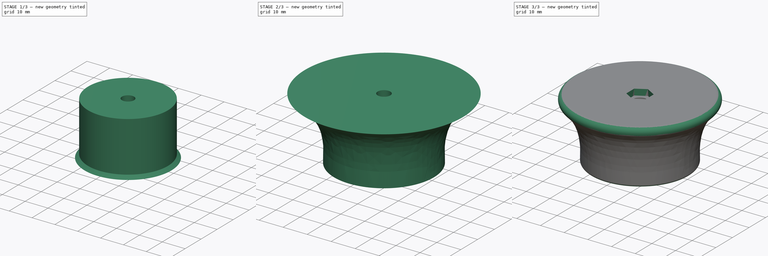
[diagram: build sequence overview — one tinted view per stage of 3, left to right]
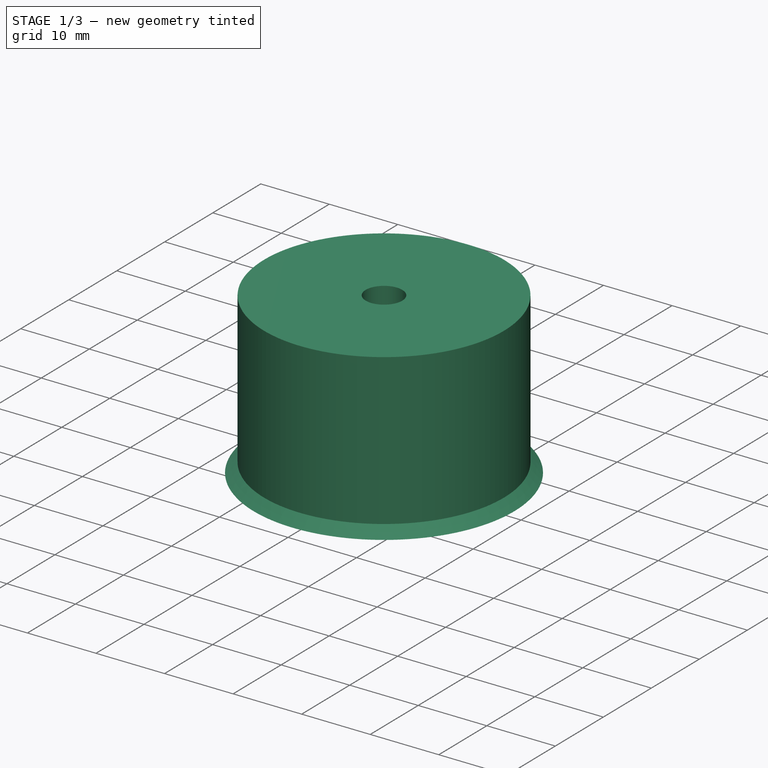
[diagram: stage 1 of 3 — iso view after this stage's code; geometry added in this stage tinted green]
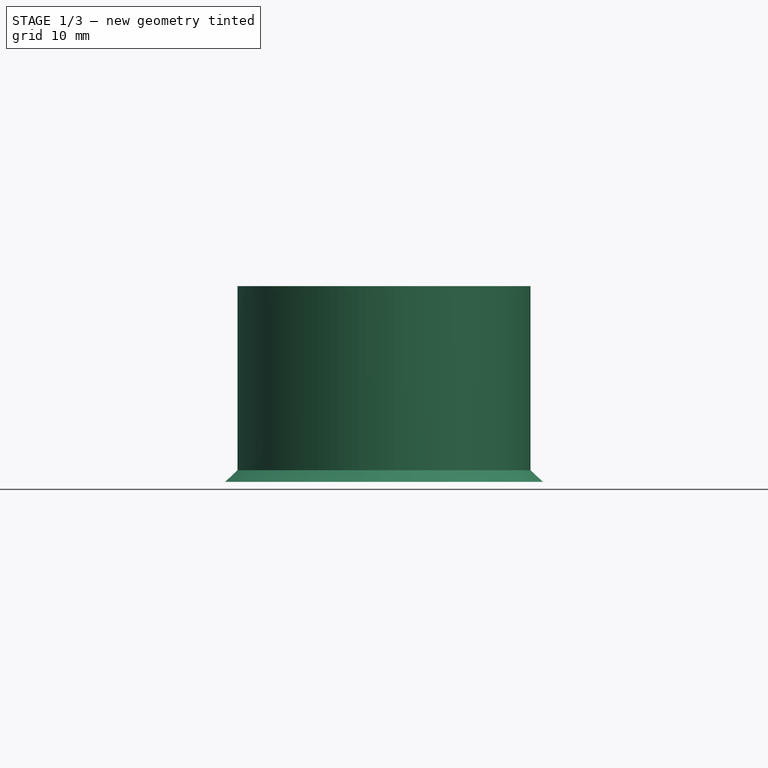
[diagram: stage 1 of 3 — front view after this stage's code; geometry added in this stage tinted green]
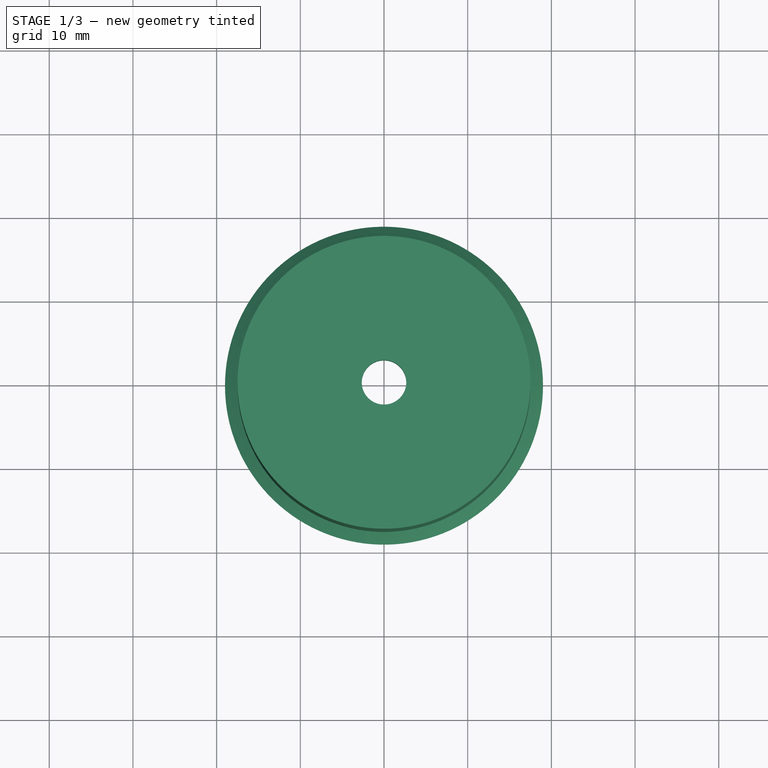
[diagram: stage 1 of 3 — top view after this stage's code; geometry added in this stage tinted green]
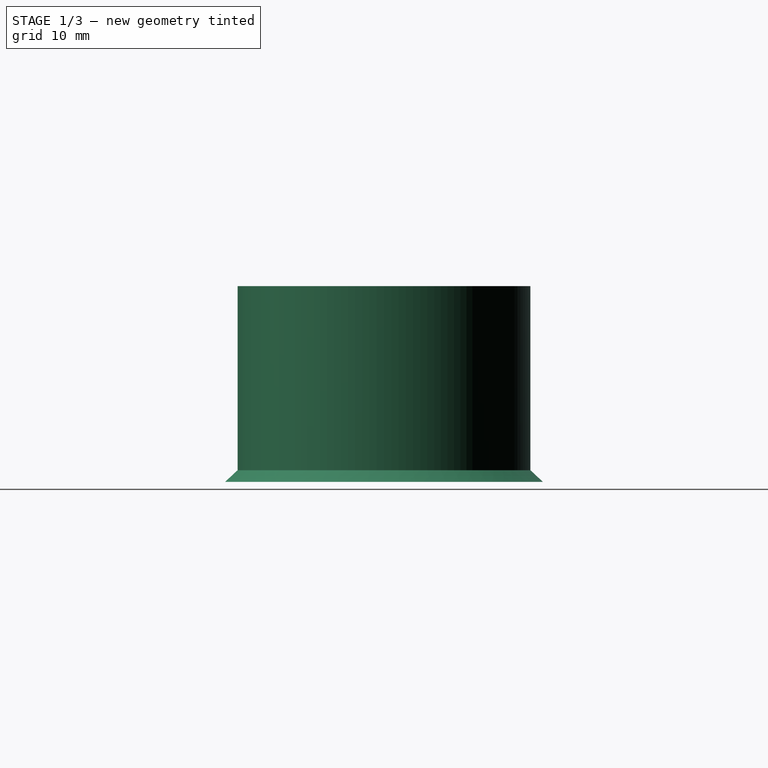
[diagram: stage 1 of 3 — right view after this stage's code; geometry added in this stage tinted green]
FCSTD DOCUMENT  (FreeCAD 0.18.4R)
Label: DishCoverHandle
License: All rights reserved
LicenseURL: http://en.wikipedia.org/wiki/All_rights_reserved
objects: Sketcher::SketchObject×8, PartDesign::AdditiveLoft×2, PartDesign::Pocket×2, PartDesign::Fillet×2, PartDesign::Body×2, PartDesign::Pad×1, Spreadsheet::Sheet×1, PartDesign::Chamfer×1
note: 23 computed .brp shape members not serialized (recipe doc carries the construction recipe); baked Part::Feature solids carry a one-line shape summary decoded from their .brp

FEATURE [PartDesign::Body] Body
  Group = -> [Sketch,Sketch001,Sketch002,AdditiveLoft,Sketch003,Pocket,Fillet,Fillet001]
  Origin = -> Origin
  Tip = -> Fillet001
FEATURE [Sketcher::SketchObject] Sketch004
  MapMode = 5
  Support = -> [XY_Plane001]
  expr: Constraints.Ri = Screws.M5Radius
  sketch-geometry (2):
    g0: Circle CenterX=0 CenterY=0 CenterZ=0 NormalX=0 NormalY=0 NormalZ=1 AngleXU=0 Radius=19
    g1: Circle CenterX=0 CenterY=0 CenterZ=0 NormalX=0 NormalY=0 NormalZ=1 AngleXU=0 Radius=2.66
  constraints (4):
    c: Coincident(g0,g-1)
    c: Radius(g0) = 19
    c: Coincident(g1,g0)
    c: Radius(g1) = 2.66  'Ri'
FEATURE [Sketcher::SketchObject] Sketch005
  AttachmentOffset = pos=(0,0,1.4) rot=(0,0,1;0rad)
  MapMode = 5
  Placement = pos=(0,0,1.4) rot=(0,0,1;0rad)
  Support = -> [XY_Plane001]
  expr: Constraints[3] = Sketch004.Constraints.Ri
  sketch-geometry (2):
    g0: Circle CenterX=0 CenterY=0 CenterZ=0 NormalX=0 NormalY=0 NormalZ=1 AngleXU=0 Radius=17.5
    g1: Circle CenterX=0 CenterY=0 CenterZ=0 NormalX=0 NormalY=0 NormalZ=1 AngleXU=0 Radius=2.66
  constraints (4):
    c: Coincident(g0,g-1)
    c: Radius(g0) = 17.5  'Ro'
    c: Coincident(g1,g0)
    c: Radius(g1) = 2.66
FEATURE [PartDesign::AdditiveLoft] AdditiveLoft001
  Closed = false
  Profile = -> Sketch004
  Ruled = false
  Sections = -> [Sketch005]
FEATURE [Sketcher::SketchObject] Sketch006
  AttachmentOffset = pos=(0,0,1.4) rot=(0,0,1;0rad)
  MapMode = 5
  Placement = pos=(0,0,1.4) rot=(0,0,1;0rad)
  Support = -> [XY_Plane001]
  expr: Constraints[1] = Sketch005.Constraints.Ro
  expr: Constraints[3] = Sketch004.Constraints.Ri
  expr: AttachmentOffset.Base.z = Sketch005.Placement.Base.z
  sketch-geometry (2):
    g0: Circle CenterX=0 CenterY=0 CenterZ=0 NormalX=0 NormalY=0 NormalZ=1 AngleXU=0 Radius=17.5
    g1: Circle CenterX=0 CenterY=0 CenterZ=0 NormalX=0 NormalY=0 NormalZ=1 AngleXU=0 Radius=2.66
  constraints (4):
    c: Coincident(g0,g-1)
    c: Radius(g0) = 17.5
    c: Coincident(g1,g0)
    c: Radius(g1) = 2.66
FEATURE [PartDesign::Pad] Pad
  BaseFeature = -> AdditiveLoft001
  Length = 22
  Length2 = 100
  Profile = -> Sketch006
  Refine = true
  Type = 0
FEATURE [Spreadsheet::Sheet] Spreadsheet001  label="Screws"
  cells = B2=M3Radius; C2(M3Radius)==1.75mm; B3=M3HeadRadius; C3(M3HeadRadius)==3mm; B4=M3HeadHeight; C4(M3HeadHeight)==2.95mm; B5=M3WasherRadius; C5(M3WasherRadius)==3.7mm; B6=M3WasherHeight; C6(M3WasherHeight)==0.5mm; B7=M3NutRadius; C7(M3NutRadius)==3.4mm; B8=M3NutHeight; C8(M3NutHeight)==2.75mm; B9=M3NylocNutHeight; C9(M3NylocNutHeight)==4.1mm; B10=M3NutDuctWidth; C10(M3NutDuctWidth)==5.85mm; B11=M4Radius; C11(M4Radius)==2.2mm; B12=M4HeadRadius; C12(M4HeadRadius)==3.75mm; B13=M4HeadHeight; C13(M4HeadHeight)==4mm; B14=M4WasherRadius; C14(M4WasherRadius)==4.7mm; B15=M4NutRadius; C15(M4NutRadius)==4.25mm; B16=M4NutHeight; C16(M4NutHeight)==3.3mm; B17=M4NutDuctWidth; C17(M4NutDuctWidth)==7.1mm; B18=M5Radius; C18(M5Radius)==2.66mm; B19=M5HeadRadius; C19(M5HeadRadius)==4.5mm; B20=M5HeadHeight; C20(M5HeadHeight)==5mm; B21=M5NutRadius; C21(M5NutRadius)==4.75mm; B22=M5NutHeight; C22(M5NutHeight)==4mm; B24=M6Radius; C24(M6Radius)==3.15mm; B25=M6HeadRadius; C25(M6HeadRadius)==5.5mm; B32=
FEATURE [Sketcher::SketchObject] Sketch007
  MapMode = 5
  Support = -> [XY_Plane001]
  expr: Constraints[18] = Screws.M5NutRadius
  sketch-geometry (7):
    g0: LineSegment StartX=4.75 StartY=-1.643e-13 StartZ=0 EndX=2.375 EndY=4.11362 EndZ=0
    g1: LineSegment StartX=2.375 StartY=4.11362 StartZ=0 EndX=-2.375 EndY=4.11362 EndZ=0
    g2: LineSegment StartX=-2.375 StartY=4.11362 StartZ=0 EndX=-4.75 EndY=4e-14 EndZ=0
    g3: LineSegment StartX=-4.75 StartY=4e-14 StartZ=0 EndX=-2.375 EndY=-4.11362 EndZ=0
    g4: LineSegment StartX=-2.375 StartY=-4.11362 StartZ=0 EndX=2.375 EndY=-4.11362 EndZ=0
    g5: LineSegment StartX=2.375 StartY=-4.11362 StartZ=0 EndX=4.75 EndY=-1.643e-13 EndZ=0
    g6: Circle [constr] CenterX=0 CenterY=0 CenterZ=0 NormalX=0 NormalY=0 NormalZ=1 AngleXU=0 Radius=4.75
  constraints (16):
    c: Coincident(g0,g1)
    c: Coincident(g1,g2)
    c: Coincident(g2,g3)
    c: Coincident(g3,g4)
    c: Coincident(g4,g5)
    c: Coincident(g5,g0)
    c: Equal(g0, g1-g5) x5
    c: PointOnObject(g0,g6)
    c: PointOnObject(g1,g6)
    c: PointOnObject(g2,g6)
    c: PointOnObject(g3,g6)
    c: PointOnObject(g4,g6)
    c: PointOnObject(g5,g6)
    c: Coincident(g6,g-1)
    c: Radius(g6) = 4.75
    c: Horizontal(g1)
FEATURE [PartDesign::Pocket] Pocket001
  BaseFeature = -> Pad
  Length = 19.4
  Length2 = 100
  Profile = -> Sketch007
  Reversed = true
  Type = 0
  expr: Length = Sketch006.Placement.Base.z + Pad.Length - 4mm
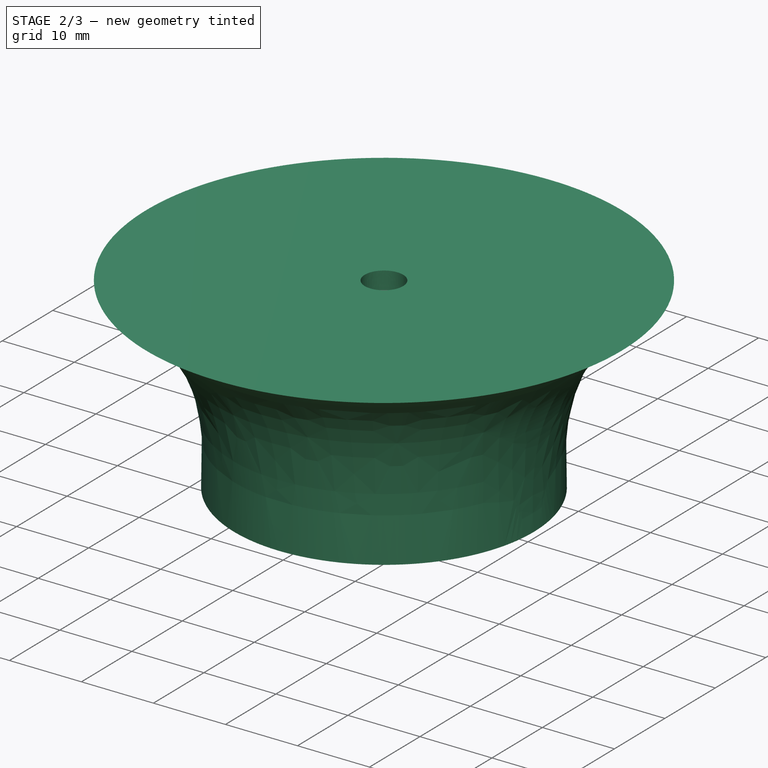
[diagram: stage 2 of 3 — iso view after this stage's code; geometry added in this stage tinted green]
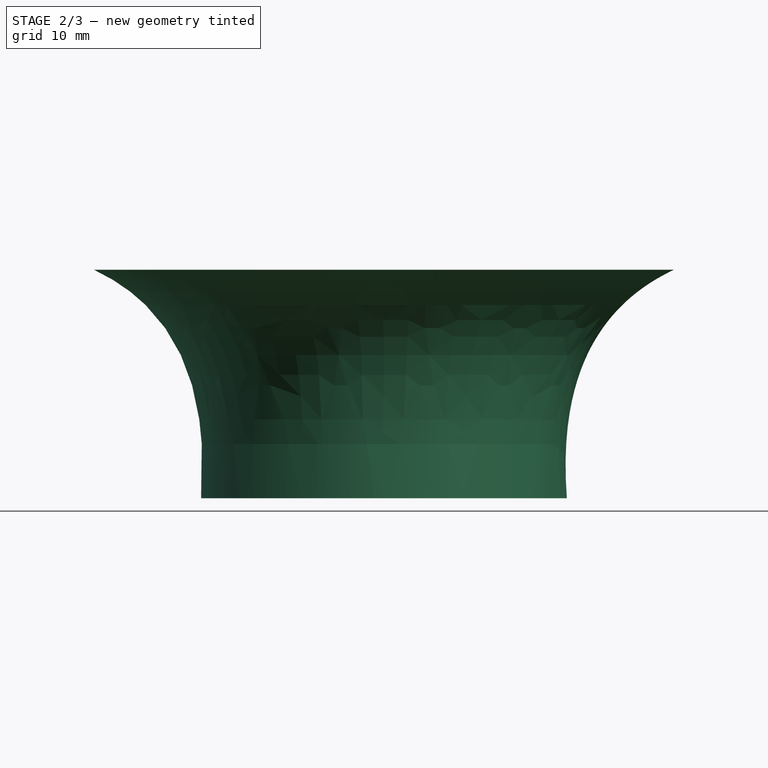
[diagram: stage 2 of 3 — front view after this stage's code; geometry added in this stage tinted green]
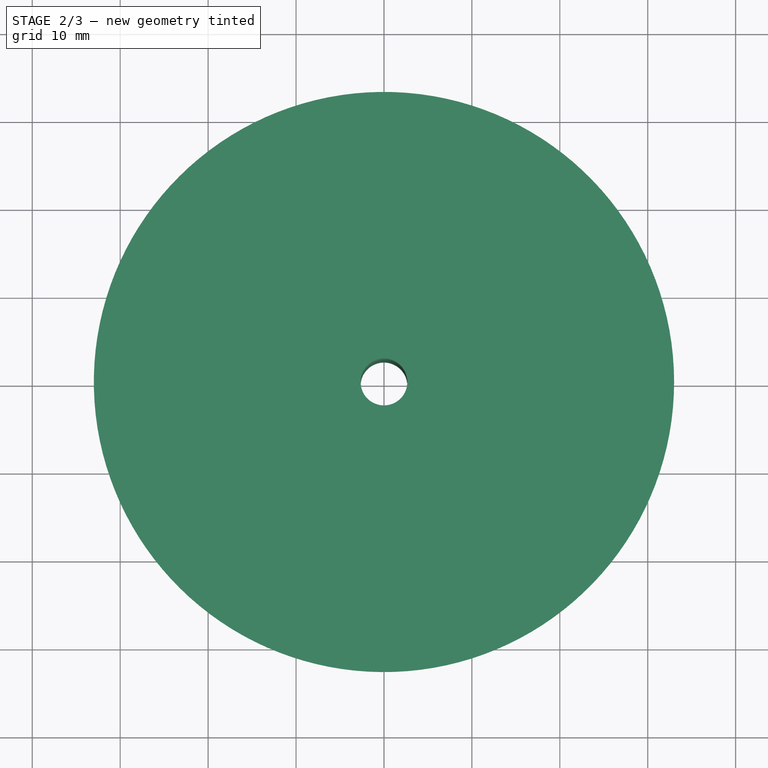
[diagram: stage 2 of 3 — top view after this stage's code; geometry added in this stage tinted green]
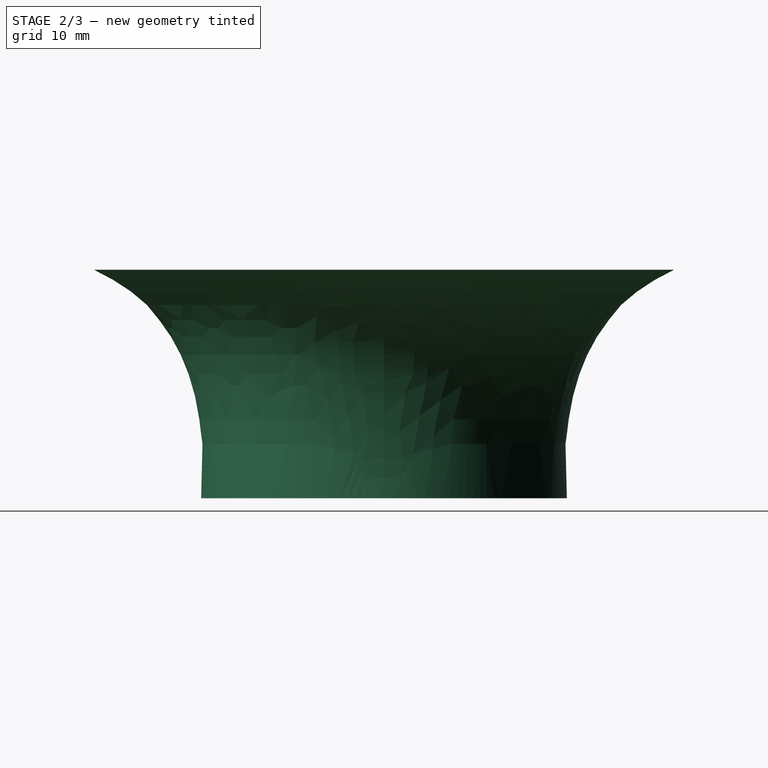
[diagram: stage 2 of 3 — right view after this stage's code; geometry added in this stage tinted green]
FEATURE [Sketcher::SketchObject] Sketch
  MapMode = 5
  Support = -> [XY_Plane]
  expr: Constraints[3] = Screws.M5Radius
  sketch-geometry (2):
    g0: Circle CenterX=0 CenterY=0 CenterZ=0 NormalX=0 NormalY=0 NormalZ=1 AngleXU=0 Radius=20.8
    g1: Circle CenterX=0 CenterY=0 CenterZ=0 NormalX=0 NormalY=0 NormalZ=1 AngleXU=0 Radius=2.66
  constraints (4):
    c: Coincident(g0,g-1)
    c: Radius(g0) = 20.8
    c: Coincident(g1,g0)
    c: Radius(g1) = 2.66
FEATURE [Sketcher::SketchObject] Sketch001
  AttachmentOffset = pos=(0,0,18) rot=(0,0,1;0rad)
  ExternalGeometry = -> [Sketch]
  MapMode = 5
  Placement = pos=(0,0,18) rot=(0,0,1;0rad)
  Support = -> [XY_Plane]
  sketch-geometry (2):
    g0: Circle CenterX=0 CenterY=0 CenterZ=0 NormalX=0 NormalY=0 NormalZ=1 AngleXU=0 Radius=24
    g1: Circle CenterX=0 CenterY=0 CenterZ=0 NormalX=0 NormalY=0 NormalZ=1 AngleXU=0 Radius=2.66
  constraints (4):
    c: Coincident(g0,g-1)
    c: Radius(g0) = 24
    c: Coincident(g1,g0)
    c: Equal(g1,g-3)
FEATURE [Sketcher::SketchObject] Sketch002
  AttachmentOffset = pos=(0,0,26) rot=(0,0,1;0rad)
  ExternalGeometry = -> [Sketch]
  MapMode = 5
  Placement = pos=(0,0,26) rot=(0,0,1;0rad)
  Support = -> [XY_Plane]
  sketch-geometry (2):
    g0: Circle CenterX=0 CenterY=0 CenterZ=0 NormalX=0 NormalY=0 NormalZ=1 AngleXU=0 Radius=33
    g1: Circle CenterX=0 CenterY=0 CenterZ=0 NormalX=0 NormalY=0 NormalZ=1 AngleXU=0 Radius=2.66
  constraints (4):
    c: Coincident(g0,g-1)
    c: Radius(g0) = 33
    c: Coincident(g1,g0)
    c: Equal(g1,g-3)
FEATURE [PartDesign::AdditiveLoft] AdditiveLoft
  Closed = false
  Profile = -> Sketch
  Ruled = false
  Sections = -> [Sketch001,Sketch002]
FEATURE [PartDesign::Chamfer] Chamfer
  Base = -> Pocket001 [Edge23]
  BaseFeature = -> Pocket001
  Size = 9
FEATURE [PartDesign::Body] Body001
  Group = -> [Sketch004,Sketch005,AdditiveLoft001,Sketch006,Pad,Sketch007,Pocket001,Chamfer]
  Origin = -> Origin001
  Tip = -> Chamfer
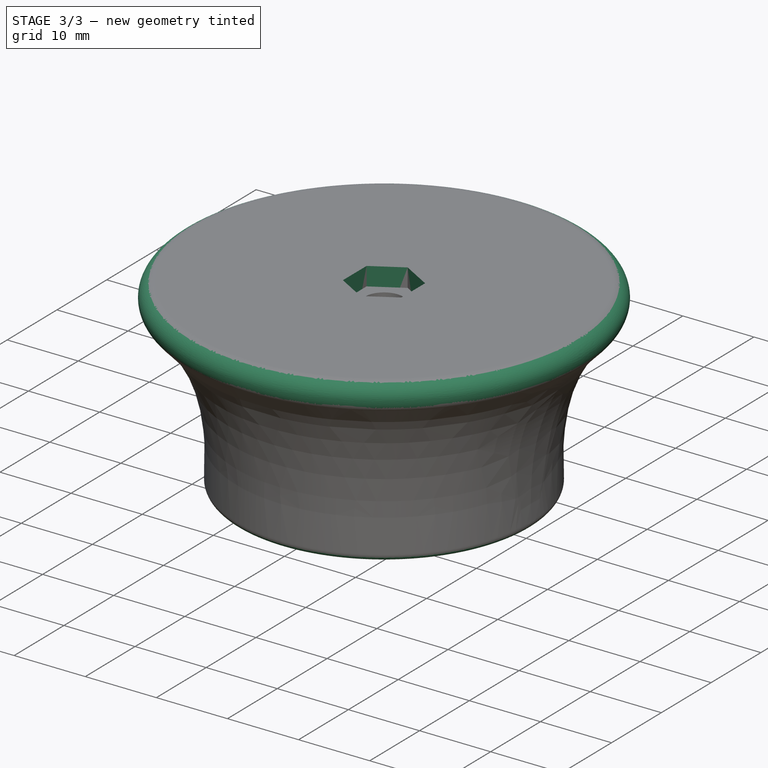
[diagram: stage 3 of 3 — iso view after this stage's code; geometry added in this stage tinted green]
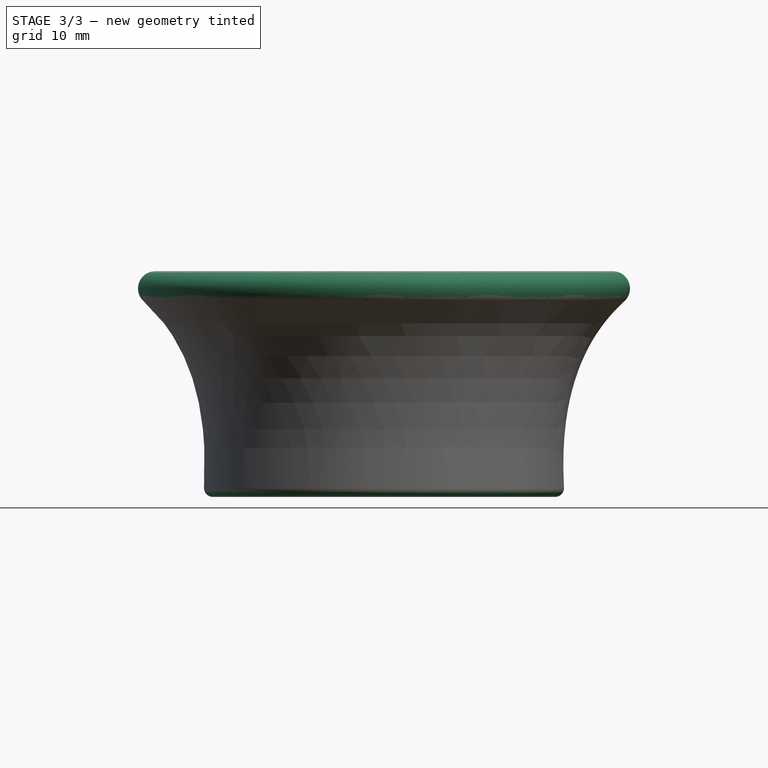
[diagram: stage 3 of 3 — front view after this stage's code; geometry added in this stage tinted green]
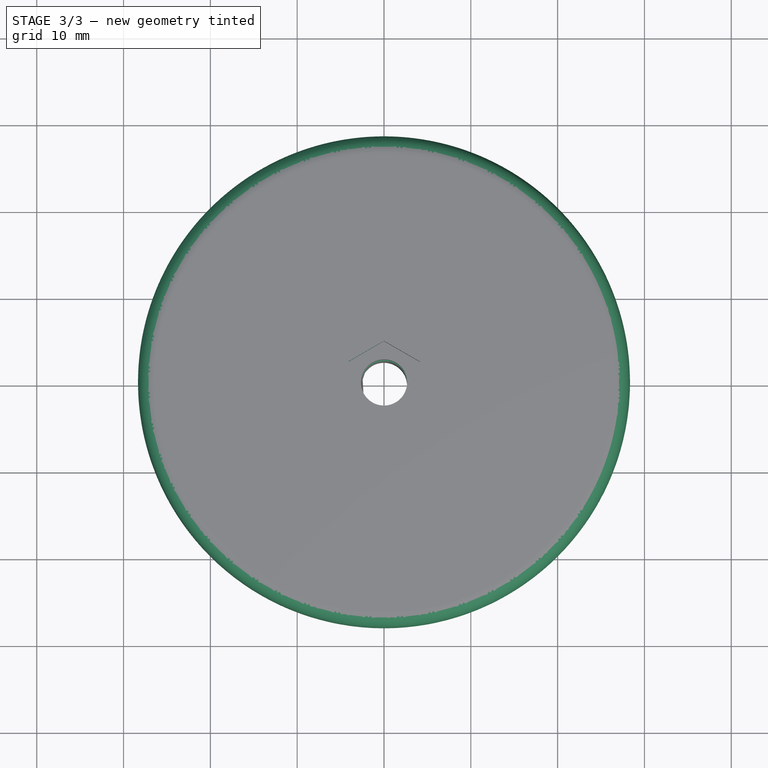
[diagram: stage 3 of 3 — top view after this stage's code; geometry added in this stage tinted green]
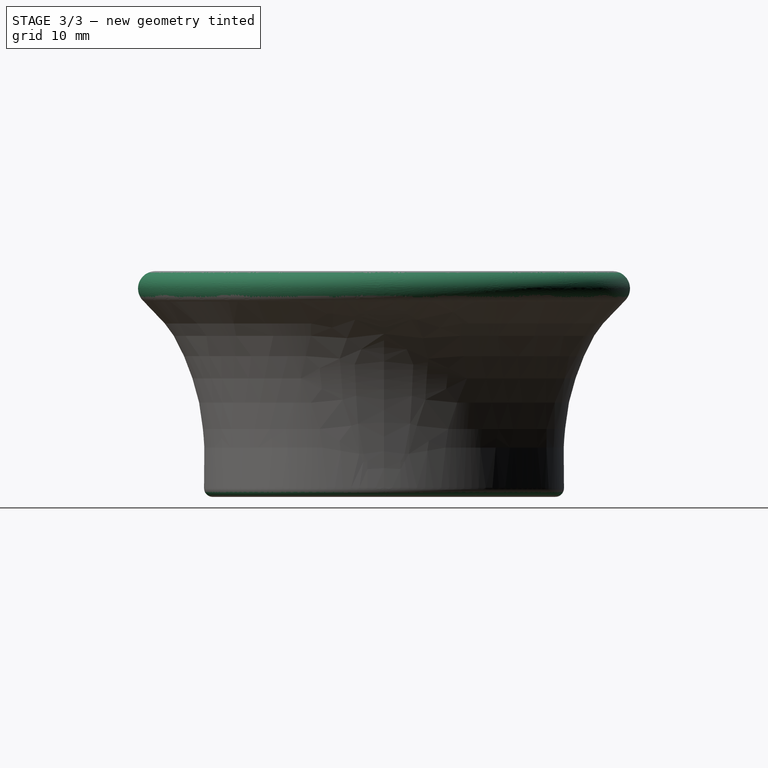
[diagram: stage 3 of 3 — right view after this stage's code; geometry added in this stage tinted green]
FEATURE [Sketcher::SketchObject] Sketch003
  AttachmentOffset = pos=(0,0,12) rot=(0,0,1;0rad)
  MapMode = 5
  Placement = pos=(0,0,12) rot=(0,0,1;0rad)
  Support = -> [XY_Plane]
  expr: Constraints[19] = Screws.M5NutRadius
  sketch-geometry (7):
    g0: LineSegment StartX=4.11362 StartY=-2.375 StartZ=0 EndX=4.11362 EndY=2.375 EndZ=0
    g1: LineSegment StartX=4.11362 StartY=2.375 StartZ=0 EndX=0 EndY=4.75 EndZ=0
    g2: LineSegment StartX=0 StartY=4.75 StartZ=0 EndX=-4.11362 EndY=2.375 EndZ=0
    g3: LineSegment StartX=-4.11362 StartY=2.375 StartZ=0 EndX=-4.11362 EndY=-2.375 EndZ=0
    g4: LineSegment StartX=-4.11362 StartY=-2.375 StartZ=0 EndX=0 EndY=-4.75 EndZ=0
    g5: LineSegment StartX=0 StartY=-4.75 StartZ=0 EndX=4.11362 EndY=-2.375 EndZ=0
    g6: Circle [constr] CenterX=0 CenterY=0 CenterZ=0 NormalX=0 NormalY=0 NormalZ=1 AngleXU=0 Radius=4.75
  constraints (16):
    c: Coincident(g0,g1)
    c: Coincident(g1,g2)
    c: Coincident(g2,g3)
    c: Coincident(g3,g4)
    c: Coincident(g4,g5)
    c: Coincident(g5,g0)
    c: Equal(g0, g1-g5) x5
    c: PointOnObject(g0,g6)
    c: PointOnObject(g1,g6)
    c: PointOnObject(g2,g6)
    c: PointOnObject(g3,g6)
    c: PointOnObject(g4,g6)
    c: PointOnObject(g5,g6)
    c: Coincident(g6,g-1)
    c: Vertical(g0)
    c: Radius(g6) = 4.75
FEATURE [PartDesign::Pocket] Pocket
  BaseFeature = -> AdditiveLoft
  Length = 5
  Length2 = 100
  Profile = -> Sketch003
  Reversed = true
  Type = 1
FEATURE [PartDesign::Fillet] Fillet
  Base = -> Pocket [Edge4]
  BaseFeature = -> Pocket
  Radius = 2
FEATURE [PartDesign::Fillet] Fillet001
  Base = -> Fillet [Edge3]
  BaseFeature = -> Fillet
  Radius = 1
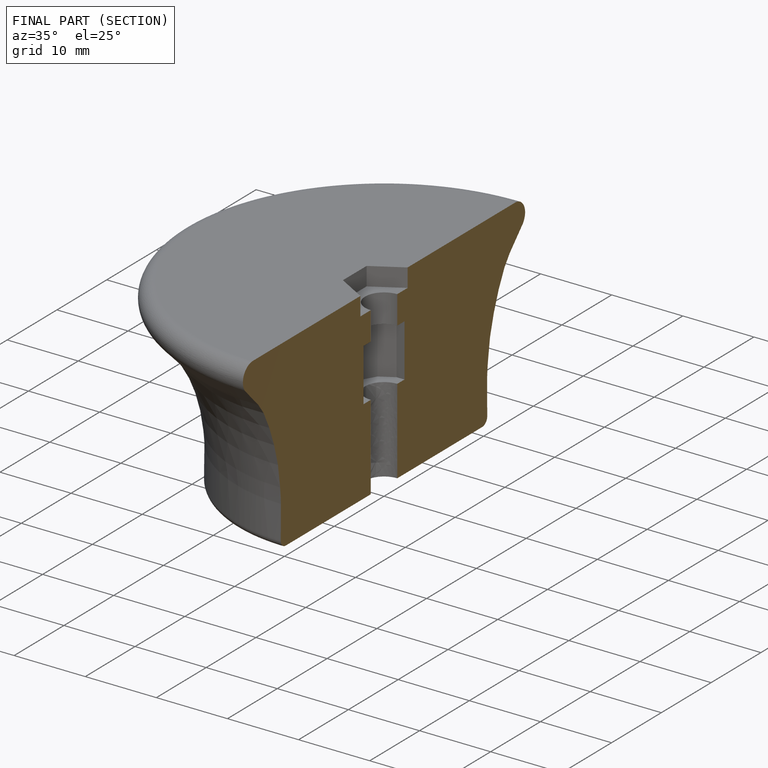
[diagram: finished part — half-section view (interior)]
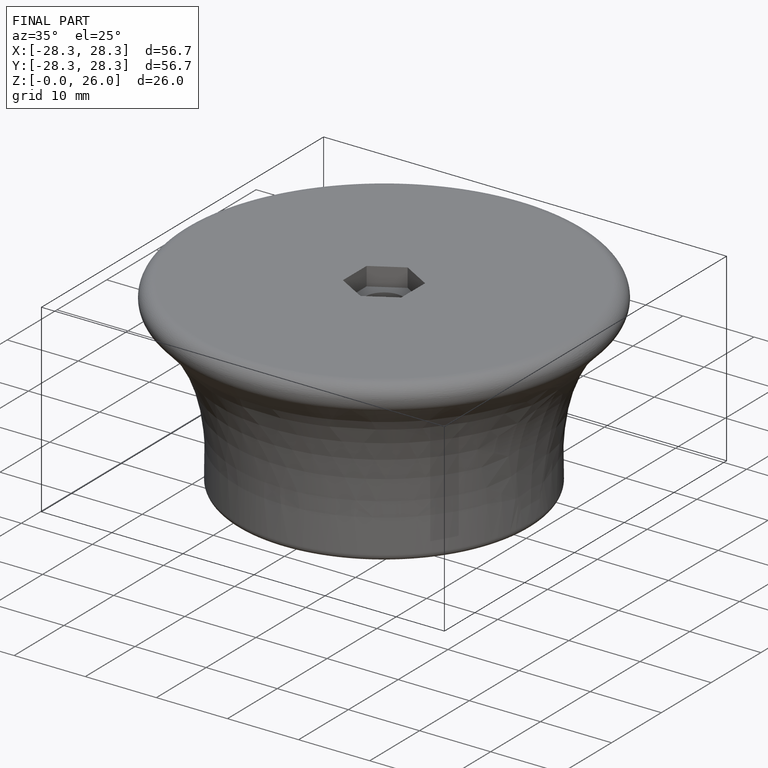
[diagram: finished part — iso view with bounding-box wireframe]
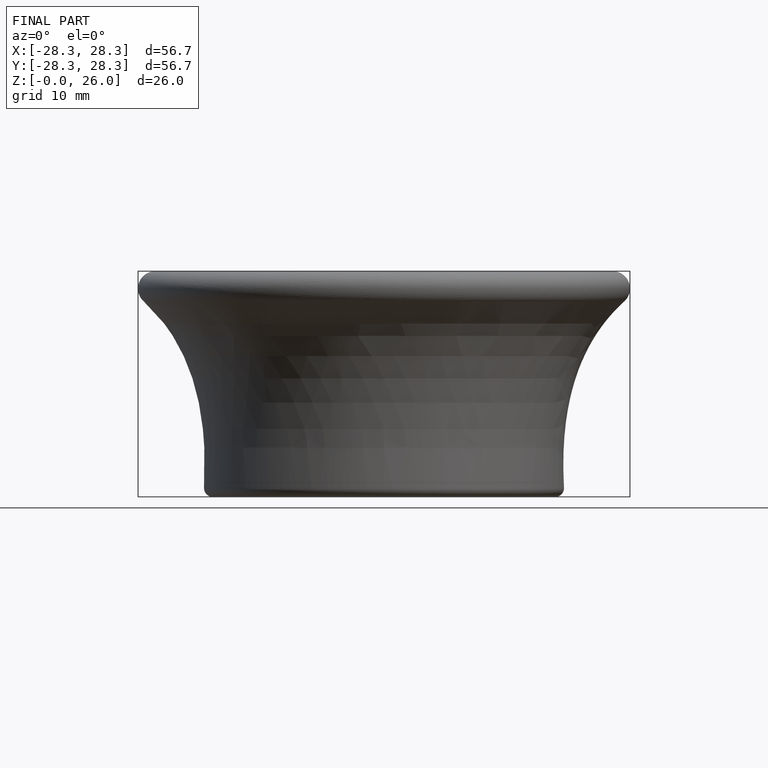
[diagram: finished part — front view with bounding-box wireframe]
